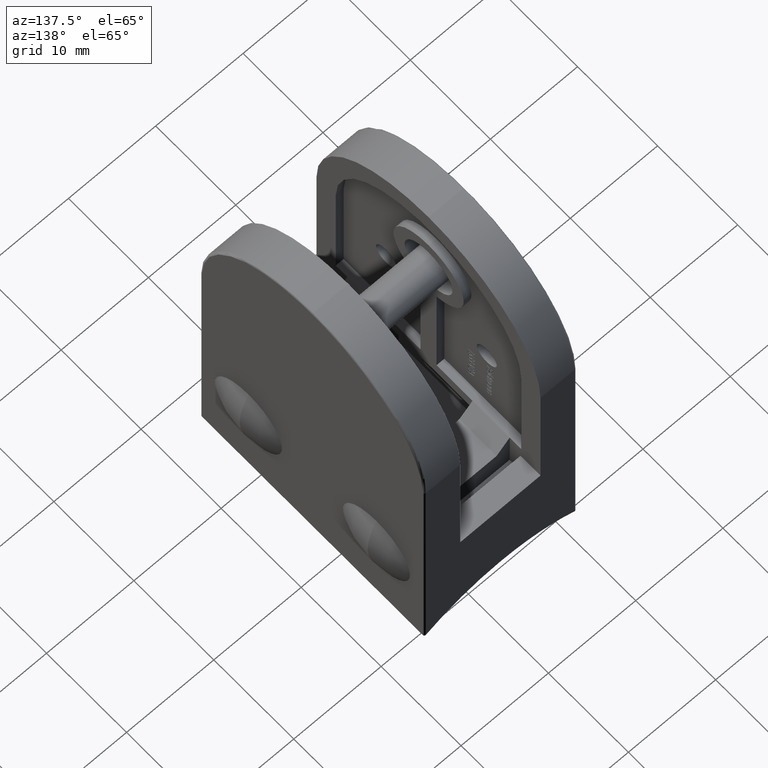
[diagram: clean part render]
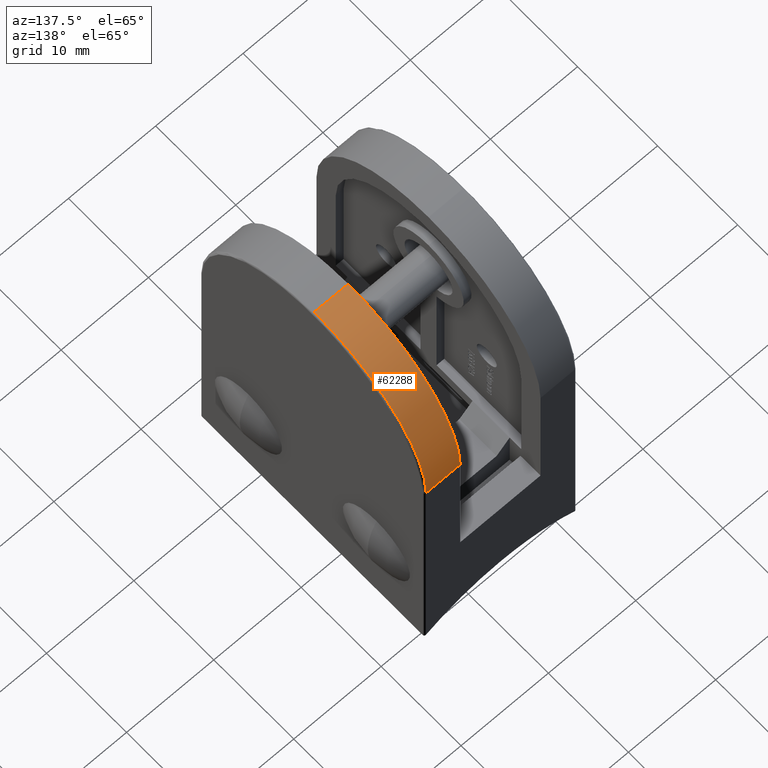
[diagram: same view with one face highlighted and labeled with its STEP entity id]
A machine part, auxiliary view. The second image highlights one B-rep face of the part: STEP entity #62288.
In plain terms, the highlighted cylindrical surface (partial cylindrical patch) has radius 14 mm, axis along (1, 0, 0).
Its self-contained STEP definition (entity closure, byte-faithful):
#5040 = LINE ( 'NONE', #11084, #50165 ) ;
#6089 = CIRCLE ( 'NONE', #25706, 13.99999999999999300 ) ;
#6880 = VERTEX_POINT ( 'NONE', #57446 ) ;
#8013 = DIRECTION ( 'NONE',  ( 1.000000000000000000, 0.0000000000000000000, 0.0000000000000000000 ) ) ;
#8048 = VERTEX_POINT ( 'NONE', #37934 ) ;
#8238 = DIRECTION ( 'NONE',  ( 0.0000000000000000000, 0.0000000000000000000, -1.000000000000000000 ) ) ;
#9406 = DIRECTION ( 'NONE',  ( 0.0000000000000000000, 0.0000000000000000000, 1.000000000000000000 ) ) ;
#11084 = CARTESIAN_POINT ( 'NONE',  ( 4.099999999999999600, -13.99999999999999300, 25.99999999999999600 ) ) ;
#12217 = EDGE_LOOP ( 'NONE', ( #59831, #34906, #49729, #22994 ) ) ;
#13273 = VECTOR ( 'NONE', #15422, 1000.000000000000000 ) ;
#15422 = DIRECTION ( 'NONE',  ( -1.000000000000000000, -0.0000000000000000000, -0.0000000000000000000 ) ) ;
#17817 = CARTESIAN_POINT ( 'NONE',  ( 0.2000000000000000900, 0.0000000000000000000, 25.99999999999999600 ) ) ;
#18384 = CARTESIAN_POINT ( 'NONE',  ( 4.099999999999999600, 0.0000000000000000000, 25.99999999999999600 ) ) ;
#19148 = AXIS2_PLACEMENT_3D ( 'NONE', #17817, #8013, #31788 ) ;
#19279 = EDGE_CURVE ( 'NONE', #27108, #6880, #55480, .T. ) ;
#20926 = DIRECTION ( 'NONE',  ( -1.000000000000000000, -0.0000000000000000000, -0.0000000000000000000 ) ) ;
#22994 = ORIENTED_EDGE ( 'NONE', *, *, #46922, .F. ) ;
#24641 = EDGE_CURVE ( 'NONE', #6880, #8048, #43766, .T. ) ;
#25706 = AXIS2_PLACEMENT_3D ( 'NONE', #46095, #36635, #8238 ) ;
#27108 = VERTEX_POINT ( 'NONE', #51259 ) ;
#31788 = DIRECTION ( 'NONE',  ( 0.0000000000000000000, 0.0000000000000000000, -1.000000000000000000 ) ) ;
#32067 = CARTESIAN_POINT ( 'NONE',  ( 4.099999999999999600, -13.99999999999999300, 25.99999999999999600 ) ) ;
#33314 = FACE_OUTER_BOUND ( 'NONE', #12217, .T. ) ;
#34906 = ORIENTED_EDGE ( 'NONE', *, *, #19279, .T. ) ;
#36635 = DIRECTION ( 'NONE',  ( 1.000000000000000000, 0.0000000000000000000, 0.0000000000000000000 ) ) ;
#37934 = CARTESIAN_POINT ( 'NONE',  ( 0.2000000000000000900, -13.99999999999999300, 25.99999999999999600 ) ) ;
#40575 = AXIS2_PLACEMENT_3D ( 'NONE', #18384, #52545, #9406 ) ;
#43766 = CIRCLE ( 'NONE', #19148, 13.99999999999999300 ) ;
#45083 = EDGE_CURVE ( 'NONE', #27108, #61292, #6089, .T. ) ;
#46055 = CYLINDRICAL_SURFACE ( 'NONE', #40575, 13.99999999999999100 ) ;
#46095 = CARTESIAN_POINT ( 'NONE',  ( 4.099999999999999600, 0.0000000000000000000, 25.99999999999999600 ) ) ;
#46922 = EDGE_CURVE ( 'NONE', #61292, #8048, #5040, .T. ) ;
#49362 = CARTESIAN_POINT ( 'NONE',  ( 4.099999999999999600, 0.0000000000000000000, 39.99999999999998600 ) ) ;
#49729 = ORIENTED_EDGE ( 'NONE', *, *, #24641, .T. ) ;
#50165 = VECTOR ( 'NONE', #20926, 1000.000000000000000 ) ;
#51259 = CARTESIAN_POINT ( 'NONE',  ( 4.099999999999999600, 0.0000000000000000000, 39.99999999999999300 ) ) ;
#52545 = DIRECTION ( 'NONE',  ( -1.000000000000000000, -0.0000000000000000000, -0.0000000000000000000 ) ) ;
#55480 = LINE ( 'NONE', #49362, #13273 ) ;
#57446 = CARTESIAN_POINT ( 'NONE',  ( 0.2000000000000000900, 0.0000000000000000000, 39.99999999999999300 ) ) ;
#59831 = ORIENTED_EDGE ( 'NONE', *, *, #45083, .F. ) ;
#61292 = VERTEX_POINT ( 'NONE', #32067 ) ;
#62288 = ADVANCED_FACE ( 'NONE', ( #33314 ), #46055, .T. ) ;